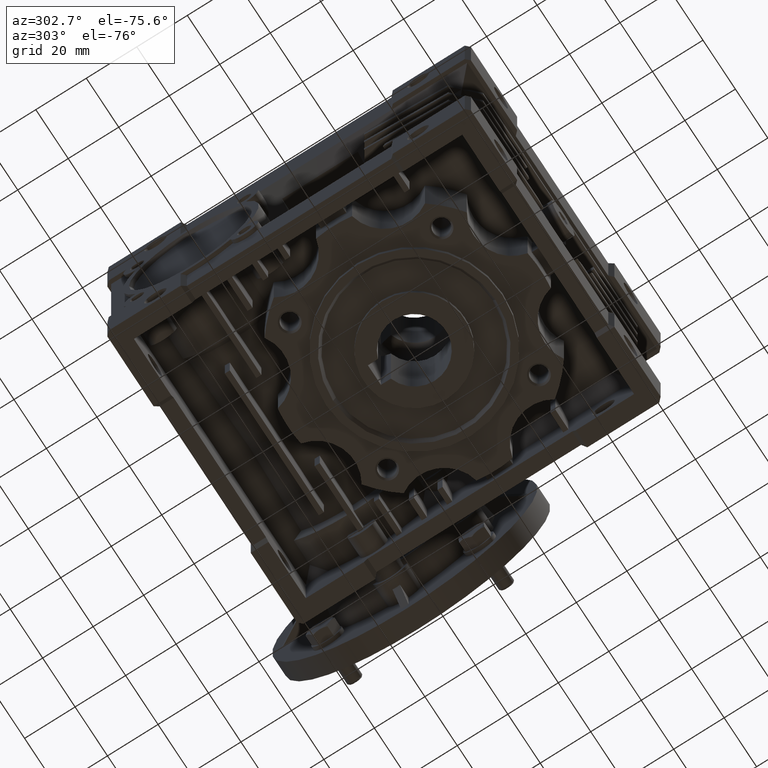
[diagram: clean part render]
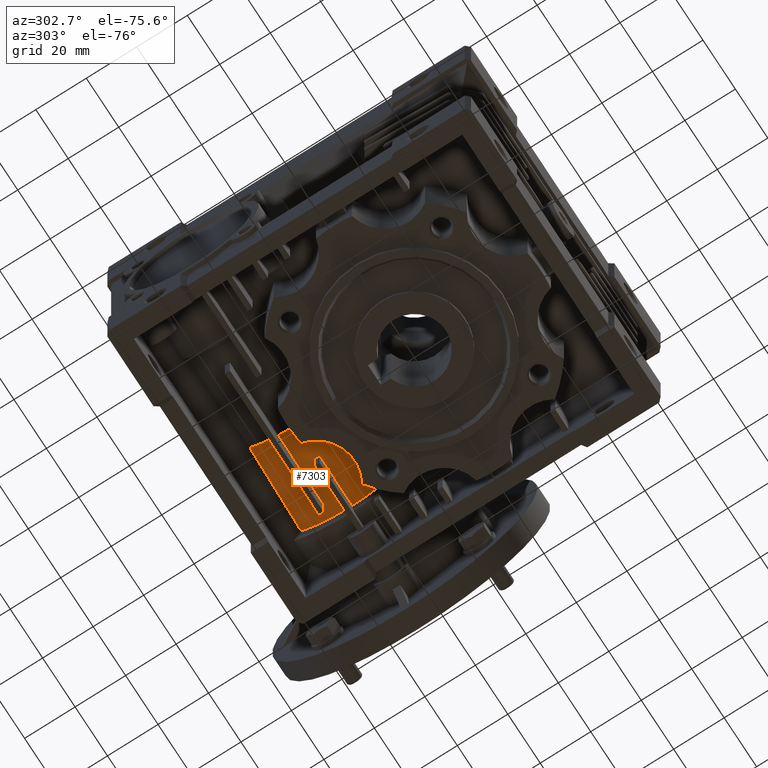
[diagram: same view with one face highlighted and labeled with its STEP entity id]
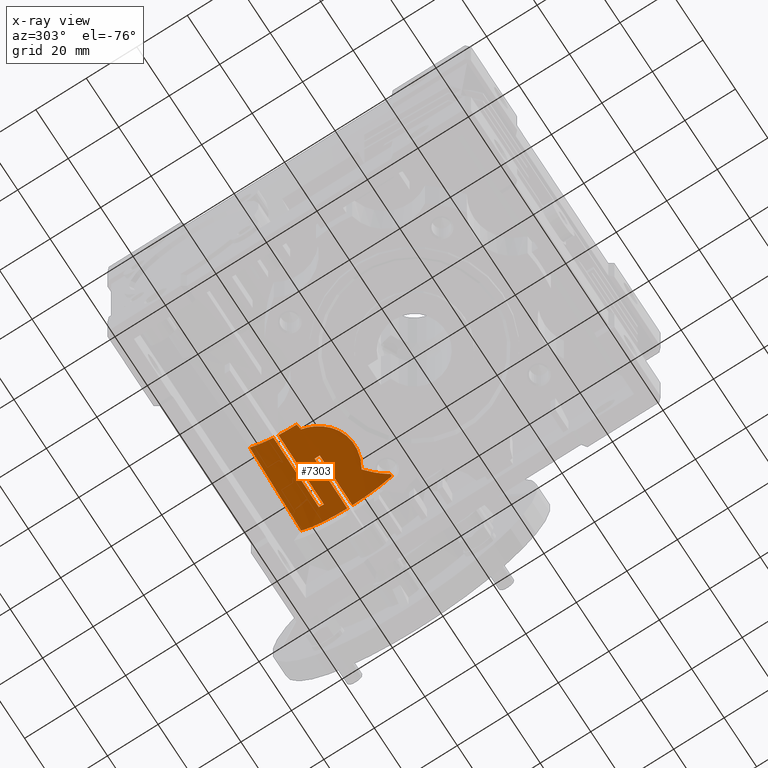
[diagram: x-ray of the same camera — body ghosted, the highlighted face saturated]
A machine part, auxiliary view. The second image highlights one B-rep face of the part: STEP entity #7303.
The next image is the same camera in x-ray: the body ghosted, the highlighted face saturated — about 0% of this face is hidden behind the body in this view.
In plain terms, the highlighted conical surface has half-angle 2.177 deg.
Its self-contained STEP definition (entity closure, byte-faithful):
#259 = DIRECTION ( 'NONE',  ( -1.352083769272647747E-15, -1.000000000000000000, 0.000000000000000000 ) ) ;
#341 = CIRCLE ( 'NONE', #20527, 24.40000000000000213 ) ;
#448 = B_SPLINE_CURVE_WITH_KNOTS ( 'NONE', 3,
 ( #27062, #22186, #33178, #29763 ),
 .UNSPECIFIED., .F., .F.,
 ( 4, 4 ),
 ( 1.734723475976804976E-18, 0.002170394362174279685 ),
 .UNSPECIFIED. ) ;
#568 = ORIENTED_EDGE ( 'NONE', *, *, #11289, .T. ) ;
#708 = CARTESIAN_POINT ( 'NONE',  ( 31.43333310625920518, 49.00000000000000000, -25.38501880372854913 ) ) ;
#712 = CARTESIAN_POINT ( 'NONE',  ( 7.152917996517200727, 49.48571272736299420, -24.47642798150682353 ) ) ;
#727 = CARTESIAN_POINT ( 'NONE',  ( 38.15000000000000568, 33.32110315398524847, -19.50000000000000000 ) ) ;
#1037 = ORIENTED_EDGE ( 'NONE', *, *, #29144, .T. ) ;
#1132 = VERTEX_POINT ( 'NONE', #18082 ) ;
#1395 = CARTESIAN_POINT ( 'NONE',  ( 33.00000000000000000, 59.00000000000000000, -23.82075147632389900 ) ) ;
#1560 = CARTESIAN_POINT ( 'NONE',  ( 16.04999806654330285, 68.71578186565510293, -16.30192543702879959 ) ) ;
#1597 = DIRECTION ( 'NONE',  ( 1.990666283907811368E-15, -1.000000000000000000, 0.000000000000000000 ) ) ;
#1628 = B_SPLINE_CURVE_WITH_KNOTS ( 'NONE', 3,
 ( #32249, #34943, #29697, #34754, #26816, #26638 ),
 .UNSPECIFIED., .F., .F.,
 ( 4, 2, 4 ),
 ( 1.298148181579757605E-17, 0.005299347694974513960, 0.01059869538994901404 ),
 .UNSPECIFIED. ) ;
#2045 = B_SPLINE_CURVE_WITH_KNOTS ( 'NONE', 3,
 ( #18024, #32437, #29555, #29013 ),
 .UNSPECIFIED., .F., .F.,
 ( 4, 4 ),
 ( 6.938893903907229918E-18, 0.0009210101499236040146 ),
 .UNSPECIFIED. ) ;
#2304 = CARTESIAN_POINT ( 'NONE',  ( 27.87056149492272183, 38.88676008032243203, -22.69906173103489522 ) ) ;
#2369 = EDGE_CURVE ( 'NONE', #1132, #6114, #30210, .T. ) ;
#2473 = CARTESIAN_POINT ( 'NONE',  ( 19.86012974271765685, 37.78566386851034764, -21.77278873068890164 ) ) ;
#2528 = CARTESIAN_POINT ( 'NONE',  ( 33.00000000000000000, 59.00000000000000000, -23.82075147632389900 ) ) ;
#4115 = ORIENTED_EDGE ( 'NONE', *, *, #2369, .T. ) ;
#4333 = CARTESIAN_POINT ( 'NONE',  ( 29.93380622075925501, 40.04955986197644791, -23.31298259734918688 ) ) ;
#4639 = DIRECTION ( 'NONE',  ( -1.000000000000000000, 0.000000000000000000, 0.000000000000000000 ) ) ;
#4860 = AXIS2_PLACEMENT_3D ( 'NONE', #21553, #27124, #29655 ) ;
#5180 = CARTESIAN_POINT ( 'NONE',  ( 20.16430392407421834, 37.74882986683699215, -21.76531771387580960 ) ) ;
#5250 = B_SPLINE_CURVE_WITH_KNOTS ( 'NONE', 3,
 ( #16023, #5349, #2304, #21612, #29887, #19444, #13465, #32597, #13661, #24144, #30228, #7907, #24670, #5180, #2473, #27173, #10434, #27709, #13138, #32780, #35666, #16178, #24477, #16351, #27347, #27549, #10951, #8237, #19242, #13835, #30424, #35132, #21440, #32421, #7727, #31300 ),
 .UNSPECIFIED., .F., .F.,
 ( 4, 2, 2, 2, 2, 2, 2, 2, 2, 2, 2, 2, 2, 2, 2, 2, 2, 4 ),
 ( 3.469446951953614189E-18, 0.003650944074711785520, 0.004563680093389735695, 0.005476416112067686304, 0.007301888149423590123, 0.009127360186779493942, 0.01004009620545744629, 0.01095283222413539863, 0.01277830426149130158, 0.01369104028016925045, 0.01460377629884720106, 0.01825472037355898441, 0.02008019241091488216, 0.02190566444827077991, 0.02373113648562667766, 0.02464387250430462653, 0.02555660852298257540, 0.02920755259769432580 ),
 .UNSPECIFIED. ) ;
#5349 = CARTESIAN_POINT ( 'NONE',  ( 28.93235739631771963, 39.40470644472081574, -22.99636015163690672 ) ) ;
#5442 = AXIS2_PLACEMENT_3D ( 'NONE', #19589, #5688, #259 ) ;
#5679 = VERTEX_POINT ( 'NONE', #14229 ) ;
#5688 = DIRECTION ( 'NONE',  ( -1.000000000000000000, 1.352083769272645972E-15, 0.000000000000000000 ) ) ;
#5938 = ORIENTED_EDGE ( 'NONE', *, *, #9462, .T. ) ;
#6114 = VERTEX_POINT ( 'NONE', #19610 ) ;
#6273 = EDGE_CURVE ( 'NONE', #11822, #17809, #29512, .T. ) ;
#6314 = CARTESIAN_POINT ( 'NONE',  ( 18.00000000000000000, 49.00000000000000000, -24.87402447183819731 ) ) ;
#6339 = CARTESIAN_POINT ( 'NONE',  ( 5.000000000000000000, 59.00000000000000000, -22.67950616746314907 ) ) ;
#6775 = CONICAL_SURFACE ( 'NONE', #7354, 25.66000000000000014, 0.03799076188566222201 ) ;
#7003 = VERTEX_POINT ( 'NONE', #6339 ) ;
#7303 = ADVANCED_FACE ( 'NONE', ( #14001 ), #6775, .T. ) ;
#7332 = CARTESIAN_POINT ( 'NONE',  ( 5.000000000000000000, 68.41806775489840220, -16.00421132627204912 ) ) ;
#7354 = AXIS2_PLACEMENT_3D ( 'NONE', #24998, #11307, #22331 ) ;
#7371 = AXIS2_PLACEMENT_3D ( 'NONE', #21061, #4639, #34401 ) ;
#7727 = CARTESIAN_POINT ( 'NONE',  ( 7.414457098425923931, 48.27825912283778109, -24.46100057719557697 ) ) ;
#7888 = CARTESIAN_POINT ( 'NONE',  ( 23.66661839748075025, 59.00000000000000000, -23.44152249085320250 ) ) ;
#7907 = CARTESIAN_POINT ( 'NONE',  ( 21.08604137752777419, 37.67563444371428005, -21.76421172736225529 ) ) ;
#8237 = CARTESIAN_POINT ( 'NONE',  ( 9.931486759192772240, 43.48580296888541596, -23.71351635853944373 ) ) ;
#8336 = AXIS2_PLACEMENT_3D ( 'NONE', #27264, #24926, #24576 ) ;
#8375 = ORIENTED_EDGE ( 'NONE', *, *, #27271, .T. ) ;
#8431 = EDGE_CURVE ( 'NONE', #9716, #19622, #448, .T. ) ;
#9153 = ORIENTED_EDGE ( 'NONE', *, *, #33868, .T. ) ;
#9370 = CARTESIAN_POINT ( 'NONE',  ( 38.15000000000000568, 49.00000000000000000, -25.64050701526790021 ) ) ;
#9462 = EDGE_CURVE ( 'NONE', #6114, #11533, #21788, .T. ) ;
#9549 = B_SPLINE_CURVE_WITH_KNOTS ( 'NONE', 3,
 ( #6314, #25255, #708, #9370 ),
 .UNSPECIFIED., .F., .F.,
 ( 4, 4 ),
 ( 3.469446951953614959E-18, 0.02016457278221835125 ),
 .UNSPECIFIED. ) ;
#9716 = VERTEX_POINT ( 'NONE', #18459 ) ;
#9884 = ORIENTED_EDGE ( 'NONE', *, *, #18697, .T. ) ;
#10319 = CARTESIAN_POINT ( 'NONE',  ( 18.00000000000000000, 51.00000000000000000, -24.87402447183819731 ) ) ;
#10419 = CARTESIAN_POINT ( 'NONE',  ( 14.33328247345201945, 59.00000000000000000, -23.06116705414135026 ) ) ;
#10434 = CARTESIAN_POINT ( 'NONE',  ( 18.36158067725385834, 38.05101395734754277, -21.85528055269725201 ) ) ;
#10482 = CARTESIAN_POINT ( 'NONE',  ( 24.71666643258980045, 51.00000000000000000, -25.12952480653554943 ) ) ;
#10620 = CARTESIAN_POINT ( 'NONE',  ( 14.33330596689606118, 57.00000000000000000, -23.74466126619689987 ) ) ;
#10951 = CARTESIAN_POINT ( 'NONE',  ( 10.69779898130020790, 42.57107473657373475, -23.47359890980175834 ) ) ;
#11289 = EDGE_CURVE ( 'NONE', #11533, #17615, #9549, .T. ) ;
#11307 = DIRECTION ( 'NONE',  ( 1.000000000000000000, 0.000000000000000000, 0.000000000000000000 ) ) ;
#11533 = VERTEX_POINT ( 'NONE', #34612 ) ;
#11822 = VERTEX_POINT ( 'NONE', #33499 ) ;
#12340 = CIRCLE ( 'NONE', #4860, 24.40000000000000213 ) ;
#13138 = CARTESIAN_POINT ( 'NONE',  ( 17.19611000958661506, 38.38608212560815502, -21.98465320577744464 ) ) ;
#13148 = B_SPLINE_CURVE_WITH_KNOTS ( 'NONE', 3,
 ( #1395, #7888, #10419, #29351 ),
 .UNSPECIFIED., .F., .F.,
 ( 4, 4 ),
 ( 0.000000000000000000, 0.02802324822098604951 ),
 .UNSPECIFIED. ) ;
#13465 = CARTESIAN_POINT ( 'NONE',  ( 25.29605711622074082, 38.06799762892234895, -22.16381474012648667 ) ) ;
#13661 = CARTESIAN_POINT ( 'NONE',  ( 23.81244256063742881, 37.78273162142973263, -21.94332988733857093 ) ) ;
#13835 = CARTESIAN_POINT ( 'NONE',  ( 9.077570362041793572, 44.73006022542637794, -23.98420865093516596 ) ) ;
#14001 = FACE_OUTER_BOUND ( 'NONE', #24228, .T. ) ;
#14229 = CARTESIAN_POINT ( 'NONE',  ( 5.000000000000000000, 57.00000000000000000, -23.37434491060659880 ) ) ;
#15458 = VERTEX_POINT ( 'NONE', #4333 ) ;
#16023 = CARTESIAN_POINT ( 'NONE',  ( 29.93380622075925501, 40.04955986197644791, -23.31298259734918688 ) ) ;
#16178 = CARTESIAN_POINT ( 'NONE',  ( 14.93217210773152992, 39.27703917367297493, -22.34266508595865020 ) ) ;
#16351 = CARTESIAN_POINT ( 'NONE',  ( 12.44112830034475081, 40.93385683917907159, -22.96060482713574302 ) ) ;
#16583 = EDGE_CURVE ( 'NONE', #17809, #1132, #32509, .T. ) ;
#16880 = EDGE_CURVE ( 'NONE', #24091, #18458, #23902, .T. ) ;
#17111 = B_SPLINE_CURVE_WITH_KNOTS ( 'NONE', 3,
 ( #27038, #10620, #30251, #21630 ),
 .UNSPECIFIED., .F., .F.,
 ( 4, 4 ),
 ( 1.474514954580286030E-17, 0.02802194872371014875 ),
 .UNSPECIFIED. ) ;
#17615 = VERTEX_POINT ( 'NONE', #24972 ) ;
#17809 = VERTEX_POINT ( 'NONE', #31103 ) ;
#17886 = ORIENTED_EDGE ( 'NONE', *, *, #35238, .T. ) ;
#18024 = CARTESIAN_POINT ( 'NONE',  ( 38.15000000000000568, 33.32110315398524847, -19.50000000000000000 ) ) ;
#18082 = CARTESIAN_POINT ( 'NONE',  ( 38.15000000000000568, 51.00000000000000000, -25.64050701526785048 ) ) ;
#18364 = CARTESIAN_POINT ( 'NONE',  ( 5.000000000000000000, 50.00000000000000000, 0.000000000000000000 ) ) ;
#18458 = VERTEX_POINT ( 'NONE', #2528 ) ;
#18459 = CARTESIAN_POINT ( 'NONE',  ( 5.000000000000000888, 49.74937185533099893, -24.39871278434787527 ) ) ;
#18697 = EDGE_CURVE ( 'NONE', #30503, #31736, #2045, .T. ) ;
#18854 = EDGE_CURVE ( 'NONE', #5679, #24091, #17111, .T. ) ;
#19242 = CARTESIAN_POINT ( 'NONE',  ( 9.573998795030899345, 43.96770064446948822, -23.82760336921664646 ) ) ;
#19444 = CARTESIAN_POINT ( 'NONE',  ( 25.59168124063630501, 38.14174781453224483, -22.21617552971544285 ) ) ;
#19589 = CARTESIAN_POINT ( 'NONE',  ( 38.15000000000000568, 50.00000000000000000, 0.000000000000000000 ) ) ;
#19610 = CARTESIAN_POINT ( 'NONE',  ( 18.00000000000000000, 51.00000000000000000, -24.87402447183819731 ) ) ;
#19622 = VERTEX_POINT ( 'NONE', #712 ) ;
#20055 = DIRECTION ( 'NONE',  ( -1.000000000000000000, 1.352083769272645972E-15, 7.205349752968610963E-30 ) ) ;
#20527 = AXIS2_PLACEMENT_3D ( 'NONE', #18364, #29180, #1597 ) ;
#21061 = CARTESIAN_POINT ( 'NONE',  ( 18.00000000000000000, 50.00000000000000000, 0.000000000000000000 ) ) ;
#21440 = CARTESIAN_POINT ( 'NONE',  ( 8.479322826120231582, 45.78326267864027699, -24.16867687736341352 ) ) ;
#21553 = CARTESIAN_POINT ( 'NONE',  ( 5.000000000000000000, 50.00000000000000000, 0.000000000000000000 ) ) ;
#21612 = CARTESIAN_POINT ( 'NONE',  ( 26.45979868574287153, 38.39592755428342485, -22.38724532824369362 ) ) ;
#21630 = CARTESIAN_POINT ( 'NONE',  ( 33.00000000000000000, 57.00000000000000000, -24.48322284538514992 ) ) ;
#21768 = CARTESIAN_POINT ( 'NONE',  ( 33.00000000000000000, 57.00000000000000000, -24.48322284538514992 ) ) ;
#21788 = CIRCLE ( 'NONE', #7371, 24.89411764705885233 ) ;
#22186 = CARTESIAN_POINT ( 'NONE',  ( 5.719521011110780151, 49.67705727282699968, -24.42531970817420017 ) ) ;
#22203 = DIRECTION ( 'NONE',  ( -1.352083769272647747E-15, -1.000000000000000000, -5.329070518200749816E-15 ) ) ;
#22331 = DIRECTION ( 'NONE',  ( 0.000000000000000000, -1.000000000000000000, 0.000000000000000000 ) ) ;
#23044 = ORIENTED_EDGE ( 'NONE', *, *, #6273, .T. ) ;
#23902 = CIRCLE ( 'NONE', #8336, 25.46425339366514962 ) ;
#24091 = VERTEX_POINT ( 'NONE', #21768 ) ;
#24144 = CARTESIAN_POINT ( 'NONE',  ( 22.60975098227365621, 37.67013928313519955, -21.82777637338186594 ) ) ;
#24228 = EDGE_LOOP ( 'NONE', ( #27600, #9884, #26829, #17886, #26701, #8375, #31537, #26613, #9153, #1037, #23044, #34138, #4115, #5938, #568 ) ) ;
#24477 = CARTESIAN_POINT ( 'NONE',  ( 13.89140204919296195, 39.86700823770190283, -22.58002893762608565 ) ) ;
#24576 = DIRECTION ( 'NONE',  ( 0.000000000000000000, -1.000000000000000000, 0.000000000000000000 ) ) ;
#24670 = CARTESIAN_POINT ( 'NONE',  ( 20.77778146727173336, 37.69372669112777885, -21.76100156730404578 ) ) ;
#24926 = DIRECTION ( 'NONE',  ( 1.000000000000000000, 0.000000000000000000, 0.000000000000000000 ) ) ;
#24972 = CARTESIAN_POINT ( 'NONE',  ( 38.15000000000000568, 49.00000000000000000, -25.64050701526790021 ) ) ;
#24998 = CARTESIAN_POINT ( 'NONE',  ( 38.15000000000000568, 50.00000000000000000, 0.000000000000000000 ) ) ;
#25255 = CARTESIAN_POINT ( 'NONE',  ( 24.71666643258985019, 49.00000000000000000, -25.12952480653554943 ) ) ;
#26613 = ORIENTED_EDGE ( 'NONE', *, *, #16880, .T. ) ;
#26638 = CARTESIAN_POINT ( 'NONE',  ( 37.23056334404884637, 33.37491807937902166, -19.49999993434894918 ) ) ;
#26701 = ORIENTED_EDGE ( 'NONE', *, *, #8431, .F. ) ;
#26817 = EDGE_CURVE ( 'NONE', #15458, #31736, #1628, .T. ) ;
#26816 = CARTESIAN_POINT ( 'NONE',  ( 36.20065759662112015, 34.52380387396939909, -20.42806191388004677 ) ) ;
#26829 = ORIENTED_EDGE ( 'NONE', *, *, #26817, .F. ) ;
#27038 = CARTESIAN_POINT ( 'NONE',  ( 5.000000000000000000, 57.00000000000000000, -23.37434491060659880 ) ) ;
#27062 = CARTESIAN_POINT ( 'NONE',  ( 5.000000000000000888, 49.74937185533099893, -24.39871278434787527 ) ) ;
#27124 = DIRECTION ( 'NONE',  ( 1.000000000000000000, 1.990666283907810185E-15, 0.000000000000000000 ) ) ;
#27173 = CARTESIAN_POINT ( 'NONE',  ( 18.95505535246265794, 37.92326066107760596, -21.81024163755455092 ) ) ;
#27264 = CARTESIAN_POINT ( 'NONE',  ( 33.00000000000000000, 50.00000000000000000, 0.000000000000000000 ) ) ;
#27271 = EDGE_CURVE ( 'NONE', #9716, #5679, #12340, .T. ) ;
#27347 = CARTESIAN_POINT ( 'NONE',  ( 11.97675107182140408, 41.32069869320520894, -23.09164438372832251 ) ) ;
#27549 = CARTESIAN_POINT ( 'NONE',  ( 11.10662829673035823, 42.13825668401099023, -23.34773901405780805 ) ) ;
#27600 = ORIENTED_EDGE ( 'NONE', *, *, #31448, .T. ) ;
#27709 = CARTESIAN_POINT ( 'NONE',  ( 17.48568395746881876, 38.29566732431396758, -21.94903831300461050 ) ) ;
#27892 = CIRCLE ( 'NONE', #34824, 25.66000000000000014 ) ;
#28773 = CARTESIAN_POINT ( 'NONE',  ( 37.23056334404884637, 33.37491807937902166, -19.49999993434894918 ) ) ;
#29013 = CARTESIAN_POINT ( 'NONE',  ( 37.23056334404884637, 33.37491807937902166, -19.49999993434894918 ) ) ;
#29144 = EDGE_CURVE ( 'NONE', #7003, #11822, #341, .T. ) ;
#29180 = DIRECTION ( 'NONE',  ( 1.000000000000000000, 1.990666283907810185E-15, 0.000000000000000000 ) ) ;
#29351 = CARTESIAN_POINT ( 'NONE',  ( 5.000000000000000000, 59.00000000000000000, -22.67950616746314907 ) ) ;
#29512 = B_SPLINE_CURVE_WITH_KNOTS ( 'NONE', 3,
 ( #7332, #1560, #34552, #34727 ),
 .UNSPECIFIED., .F., .F.,
 ( 4, 4 ),
 ( 1.647987302177964891E-17, 0.03317404892211505557 ),
 .UNSPECIFIED. ) ;
#29555 = CARTESIAN_POINT ( 'NONE',  ( 37.53704129456855298, 33.35696310000384557, -19.50000000000000000 ) ) ;
#29588 = CARTESIAN_POINT ( 'NONE',  ( 31.43333310625920518, 51.00000000000000000, -25.38501880372854913 ) ) ;
#29655 = DIRECTION ( 'NONE',  ( 1.990666283907811368E-15, -1.000000000000000000, 0.000000000000000000 ) ) ;
#29697 = CARTESIAN_POINT ( 'NONE',  ( 32.64550990501479788, 37.90780689467634090, -22.43124826969906493 ) ) ;
#29763 = CARTESIAN_POINT ( 'NONE',  ( 7.152917996517200727, 49.48571272736299420, -24.47642798150682353 ) ) ;
#29887 = CARTESIAN_POINT ( 'NONE',  ( 26.17340799228125192, 38.30572395902242278, -22.32788881382277424 ) ) ;
#30210 = B_SPLINE_CURVE_WITH_KNOTS ( 'NONE', 3,
 ( #31939, #29588, #10482, #10319 ),
 .UNSPECIFIED., .F., .F.,
 ( 4, 4 ),
 ( 0.000000000000000000, 0.02016457278221835125 ),
 .UNSPECIFIED. ) ;
#30228 = CARTESIAN_POINT ( 'NONE',  ( 22.00341447380666082, 37.64986914587601063, -21.78969101727134472 ) ) ;
#30251 = CARTESIAN_POINT ( 'NONE',  ( 23.66664058719250008, 57.00000000000000000, -24.11425598200435161 ) ) ;
#30424 = CARTESIAN_POINT ( 'NONE',  ( 8.919202800335957804, 44.99023534735634655, -24.03383557893037192 ) ) ;
#30503 = VERTEX_POINT ( 'NONE', #727 ) ;
#31103 = CARTESIAN_POINT ( 'NONE',  ( 38.15000000000000568, 69.31110243700271667, -16.89724600837635293 ) ) ;
#31300 = CARTESIAN_POINT ( 'NONE',  ( 7.152917996517200727, 49.48571272736299420, -24.47642798150682353 ) ) ;
#31448 = EDGE_CURVE ( 'NONE', #17615, #30503, #27892, .T. ) ;
#31537 = ORIENTED_EDGE ( 'NONE', *, *, #18854, .T. ) ;
#31736 = VERTEX_POINT ( 'NONE', #28773 ) ;
#31939 = CARTESIAN_POINT ( 'NONE',  ( 38.15000000000000568, 51.00000000000000000, -25.64050701526785048 ) ) ;
#32249 = CARTESIAN_POINT ( 'NONE',  ( 29.93380622075925501, 40.04955986197644791, -23.31298259734918688 ) ) ;
#32421 = CARTESIAN_POINT ( 'NONE',  ( 7.815415575839805840, 47.13639095562204773, -24.36368376853243234 ) ) ;
#32437 = CARTESIAN_POINT ( 'NONE',  ( 37.84352016144835318, 33.33902481472954804, -19.50000000000000000 ) ) ;
#32509 = CIRCLE ( 'NONE', #5442, 25.66000000000000014 ) ;
#32597 = CARTESIAN_POINT ( 'NONE',  ( 24.40879764325958590, 37.87505784874365844, -22.02079403734179408 ) ) ;
#32780 = CARTESIAN_POINT ( 'NONE',  ( 16.62172331288587657, 38.58478943704706410, -22.06390428175789609 ) ) ;
#33178 = CARTESIAN_POINT ( 'NONE',  ( 6.437154603136070463, 49.58917282878609711, -24.45139034565215042 ) ) ;
#33386 = CARTESIAN_POINT ( 'NONE',  ( 38.15000000000000568, 50.00000000000000000, 0.000000000000000000 ) ) ;
#33499 = CARTESIAN_POINT ( 'NONE',  ( 5.000000000000000000, 68.41806775489840220, -16.00421132627204912 ) ) ;
#33868 = EDGE_CURVE ( 'NONE', #18458, #7003, #13148, .T. ) ;
#34138 = ORIENTED_EDGE ( 'NONE', *, *, #16583, .T. ) ;
#34401 = DIRECTION ( 'NONE',  ( 0.000000000000000000, -1.000000000000000000, 1.421085471520199898E-14 ) ) ;
#34552 = CARTESIAN_POINT ( 'NONE',  ( 27.09999816213145252, 69.01345832300079053, -16.59960189437450140 ) ) ;
#34612 = CARTESIAN_POINT ( 'NONE',  ( 18.00000000000000000, 49.00000000000000000, -24.87402447183819731 ) ) ;
#34727 = CARTESIAN_POINT ( 'NONE',  ( 38.15000000000000568, 69.31110243700271667, -16.89724600837635293 ) ) ;
#34754 = CARTESIAN_POINT ( 'NONE',  ( 35.07740791418046200, 35.66940698336151883, -21.18324154497816636 ) ) ;
#34824 = AXIS2_PLACEMENT_3D ( 'NONE', #33386, #20055, #22203 ) ;
#34943 = CARTESIAN_POINT ( 'NONE',  ( 31.33680374481472697, 39.00093270707096593, -22.92338875546712273 ) ) ;
#35132 = CARTESIAN_POINT ( 'NONE',  ( 8.620368103230990897, 45.51640294623899763, -24.12597782325014251 ) ) ;
#35238 = EDGE_CURVE ( 'NONE', #15458, #19622, #5250, .T. ) ;
#35666 = CARTESIAN_POINT ( 'NONE',  ( 16.33597223440443713, 38.69348859229685189, -22.10770447555530183 ) ) ;